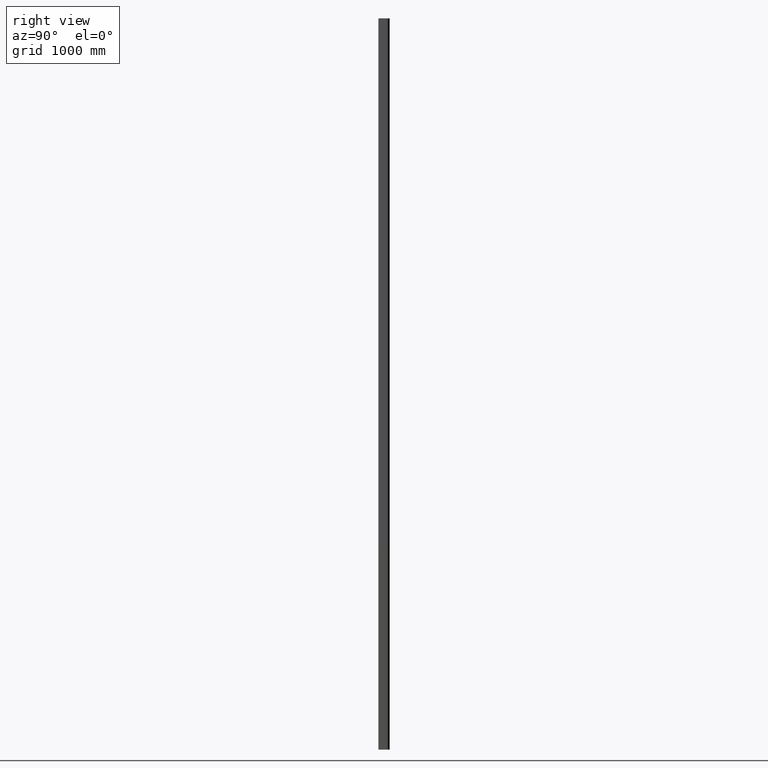
[diagram: clean part render]
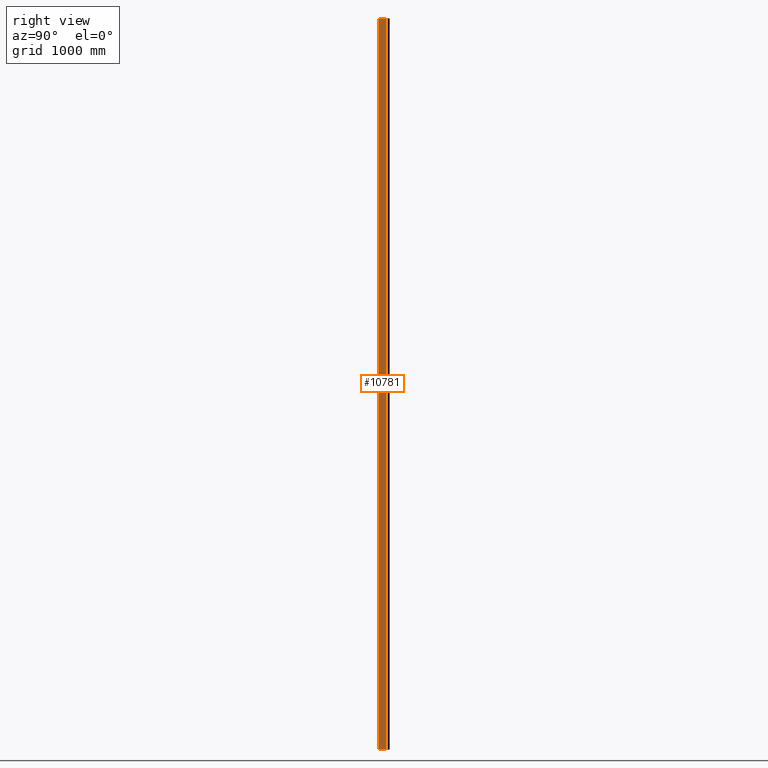
[diagram: same view with one face highlighted and labeled with its STEP entity id]
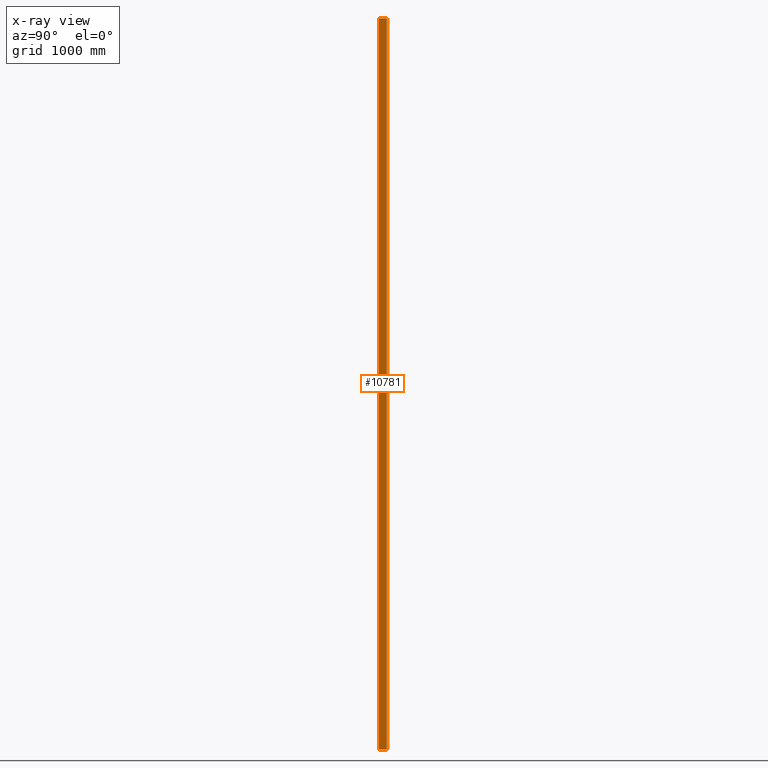
[diagram: x-ray of the same camera — body ghosted, the highlighted face saturated]
A machine part, right view. The second image highlights one B-rep face of the part: STEP entity #10781.
The next image is the same camera in x-ray: the body ghosted, the highlighted face saturated — about 0% of this face is hidden behind the body in this view.
In plain terms, the highlighted planar face has unit normal (1, 0, 0).
Its self-contained STEP definition (entity closure, byte-faithful):
#10628=CARTESIAN_POINT('',(23.430508473389864,8.000000000000011,9850.0));
#10629=VERTEX_POINT('',#10628);
#10639=CARTESIAN_POINT('',(23.430508473389864,110.90014245043156,9850.0));
#10640=VERTEX_POINT('',#10639);
#10641=CARTESIAN_POINT('',(23.430508473389864,110.90014245043156,9850.0));
#10642=DIRECTION('',(0.0,-1.0,0.0));
#10643=VECTOR('',#10642,102.90014245043155);
#10644=LINE('',#10641,#10643);
#10645=EDGE_CURVE('',#10640,#10629,#10644,.T.);
#10739=CARTESIAN_POINT('',(23.430508473389864,110.90014245043156,0.0));
#10740=VERTEX_POINT('',#10739);
#10741=CARTESIAN_POINT('',(23.430508473389864,110.90014245043156,0.0));
#10742=DIRECTION('',(0.0,0.0,1.0));
#10743=VECTOR('',#10742,9850.0);
#10744=LINE('',#10741,#10743);
#10745=EDGE_CURVE('',#10740,#10640,#10744,.T.);
#10758=CARTESIAN_POINT('',(23.430508473389864,110.90014245043156,0.0));
#10759=DIRECTION('',(1.0,0.0,0.0));
#10760=DIRECTION('',(0.0,0.0,-1.0));
#10761=AXIS2_PLACEMENT_3D('',#10758,#10759,#10760);
#10762=PLANE('',#10761);
#10763=ORIENTED_EDGE('',*,*,#10645,.T.);
#10764=CARTESIAN_POINT('',(23.430508473389864,8.000000000000011,0.0));
#10765=VERTEX_POINT('',#10764);
#10766=CARTESIAN_POINT('',(23.430508473389864,8.000000000000011,0.0));
#10767=DIRECTION('',(0.0,0.0,1.0));
#10768=VECTOR('',#10767,9850.0);
#10769=LINE('',#10766,#10768);
#10770=EDGE_CURVE('',#10765,#10629,#10769,.T.);
#10771=ORIENTED_EDGE('',*,*,#10770,.F.);
#10772=CARTESIAN_POINT('',(23.430508473389864,8.000000000000011,0.0));
#10773=DIRECTION('',(0.0,1.0,0.0));
#10774=VECTOR('',#10773,102.90014245043155);
#10775=LINE('',#10772,#10774);
#10776=EDGE_CURVE('',#10765,#10740,#10775,.T.);
#10777=ORIENTED_EDGE('',*,*,#10776,.T.);
#10778=ORIENTED_EDGE('',*,*,#10745,.T.);
#10779=EDGE_LOOP('',(#10763,#10771,#10777,#10778));
#10780=FACE_OUTER_BOUND('',#10779,.T.);
#10781=ADVANCED_FACE('',(#10780),#10762,.T.);